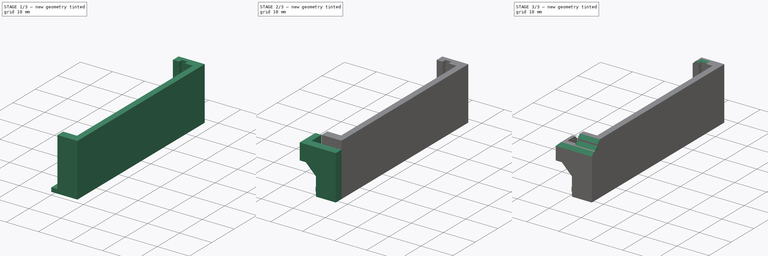
[diagram: build sequence overview — one tinted view per stage of 3, left to right]
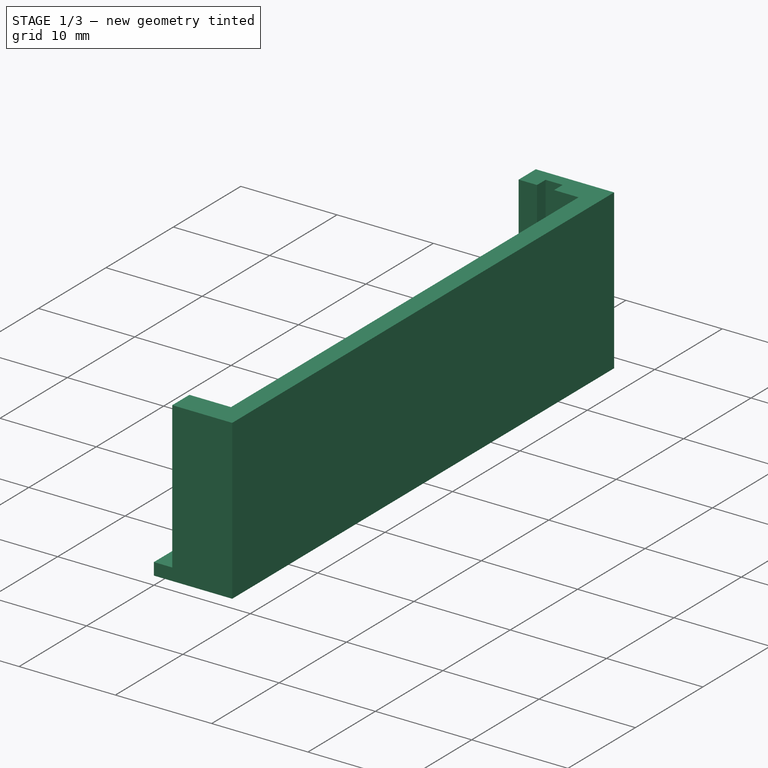
[diagram: stage 1 of 3 — iso view after this stage's code; geometry added in this stage tinted green]
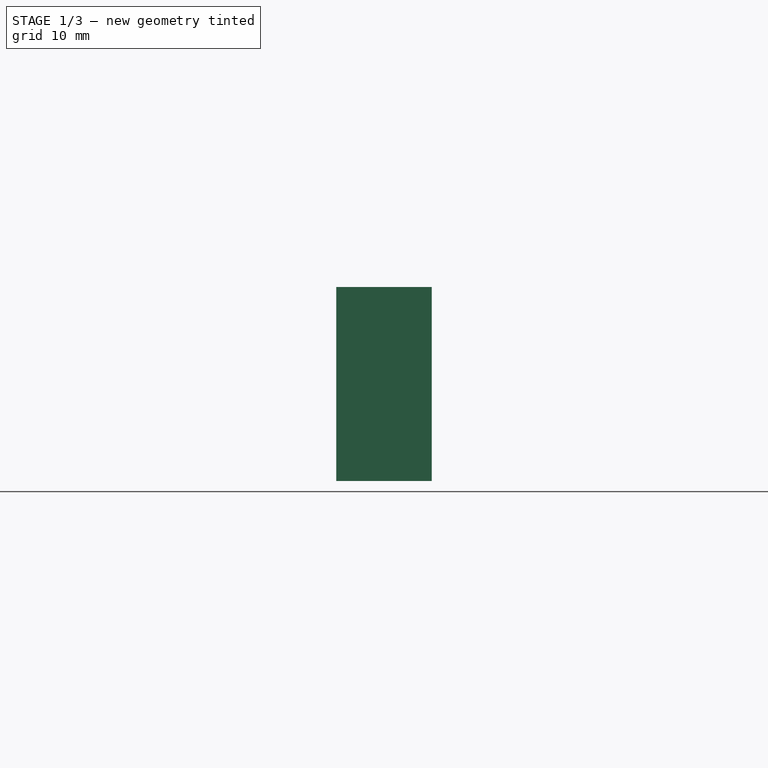
[diagram: stage 1 of 3 — front view after this stage's code; geometry added in this stage tinted green]
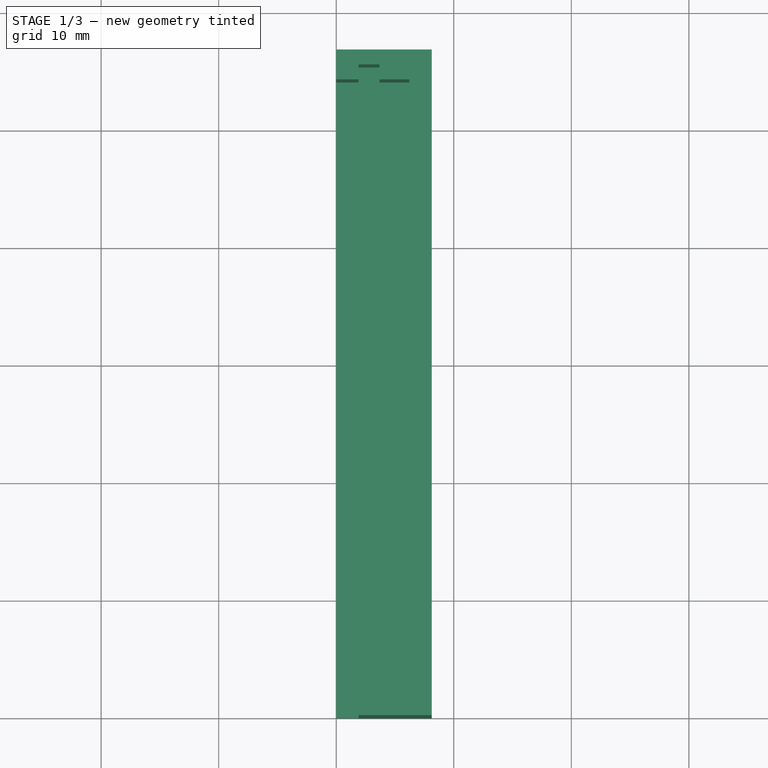
[diagram: stage 1 of 3 — top view after this stage's code; geometry added in this stage tinted green]
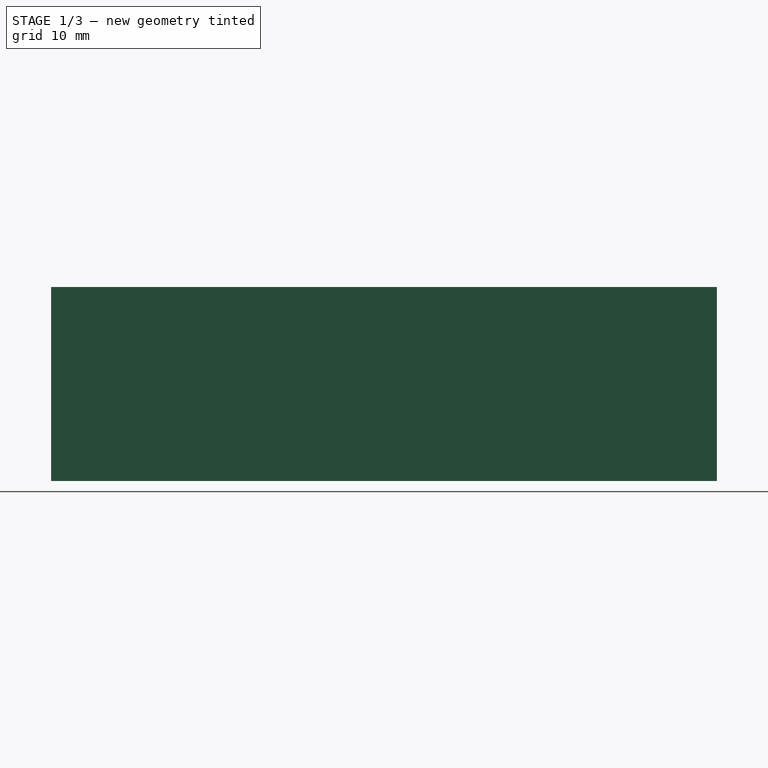
[diagram: stage 1 of 3 — right view after this stage's code; geometry added in this stage tinted green]
FCSTD DOCUMENT  (FreeCAD 0.22R36526 (Git))
Label: stm32 mount
License: All rights reserved
LicenseURL: http://en.wikipedia.org/wiki/All_rights_reserved
objects: Sketcher::SketchObject×4, PartDesign::Pad×4, PartDesign::Chamfer×2, PartDesign::Body×1
note: 17 computed .brp shape members not serialized (recipe doc carries the construction recipe); baked Part::Feature solids carry a one-line shape summary decoded from their .brp

FEATURE [Sketcher::SketchObject] Sketch
  AttachmentSupport = -> [XY_Plane]
  FullyConstrained = true
  MapMode = 5
  sketch-geometry (16):
    g0: LineSegment StartX=0 StartY=54.102 StartZ=0 EndX=0 EndY=56.642 EndZ=0
    g1: LineSegment StartX=0 StartY=56.642 StartZ=0 EndX=8.128 EndY=56.642 EndZ=0
    g2: LineSegment StartX=8.128 StartY=56.642 StartZ=0 EndX=8.128 EndY=0 EndZ=0
    g3: LineSegment StartX=1.905 StartY=2.54 StartZ=0 EndX=6.223 EndY=2.54 EndZ=0
    g4: LineSegment StartX=6.223 StartY=2.54 StartZ=0 EndX=6.223 EndY=54.102 EndZ=0
    g5: LineSegment StartX=6.223 StartY=54.102 StartZ=0 EndX=3.683 EndY=54.102 EndZ=0
    g6: LineSegment StartX=3.683 StartY=54.102 StartZ=0 EndX=3.683 EndY=55.372 EndZ=0
    g7: LineSegment StartX=3.683 StartY=55.372 StartZ=0 EndX=1.905 EndY=55.372 EndZ=0
    g8: LineSegment StartX=1.905 StartY=55.372 StartZ=0 EndX=1.905 EndY=54.102 EndZ=0
    g9: LineSegment StartX=1.905 StartY=54.102 StartZ=0 EndX=0 EndY=54.102 EndZ=0
    g10: LineSegment StartX=3.683 StartY=2.54 StartZ=0 EndX=3.683 EndY=55.372 EndZ=0
    g11: LineSegment StartX=3.683 StartY=55.372 StartZ=0 EndX=1.905 EndY=55.372 EndZ=0
    g12: LineSegment StartX=1.905 StartY=55.372 StartZ=0 EndX=1.905 EndY=2.54 EndZ=0
    g13: LineSegment StartX=1.905 StartY=2.54 StartZ=0 EndX=3.683 EndY=2.54 EndZ=0
    g14: LineSegment StartX=1.905 StartY=2.54 StartZ=0 EndX=1.905 EndY=0 EndZ=0
    g15: LineSegment StartX=8.128 StartY=0 StartZ=0 EndX=1.905 EndY=0 EndZ=0
  constraints (51):
    c: PointOnObject(g0,g-2)
    c: PointOnObject(g0,g-2)
    c: Coincident(g0,g1)
    c: Horizontal(g1)
    c: Coincident(g1,g2)
    c: PointOnObject(g2,g-1)
    c: Vertical(g2)
    c: Horizontal(g3)
    c: Coincident(g3,g4)
    c: Vertical(g4)
    c: Coincident(g4,g5)
    c: Horizontal(g5)
    c: Coincident(g5,g6)
    c: Coincident(g6,g7)
    c: Horizontal(g7)
    c: Coincident(g7,g8)
    c: Vertical(g8)
    c: Coincident(g8,g9)
    c: Coincident(g9,g0)
    c: Horizontal(g9)
    c: Vertical(g6)
    c: Coincident(g10,g11)
    c: Coincident(g11,g12)
    c: Coincident(g12,g13)
    c: Coincident(g13,g10)
    c: Vertical(g10)
    c: Vertical(g12)
    c: Horizontal(g13)
    c: Coincident(g11,g7)
    c: Coincident(g10,g6)
    c: Distance(g7,g7) = 1.778
    c: Distance(g3,g7) = 52.832
    c: Coincident(g12,g3)
    c: Coincident(g14,g3)
    c: PointOnObject(g14,g-1)
    c: Vertical(g14)
    c: Coincident(g15,g2)
    c: Coincident(g15,g14)
    c: DistanceY(g6,g6) = 1.27
    c: Equal(g6,g8)
    c: DistanceY(g14,g14) = 2.54
    c: DistanceY(g0,g0) = 2.54
    c: DistanceX(g9,g9) = 1.905
    c: DistanceX(g5,g5) = 2.54
    c: Distance(g4,g2) = 1.905
    c: Distance(g3,g-1) = 2.54  'mount_height_1'
    c: Distance(g0,g-1) = 54.102  'mount_height_2'
    c: Distance(g-2,g2) = 8.128  'mount_depth'
    c: Distance(g-2,g4) = 6.223  'mount_depth_2'
    c: Distance(g1,g-1) = 56.642  'mount_height_3'
    c: Distance(g-2,g14) = 1.905  'mount_depth_4'
FEATURE [PartDesign::Pad] Pad
  Direction = (0,0,1)
  Length = 15.24
  Length2 = 10
  Profile = -> Sketch
  ReferenceAxis = -> Sketch [N_Axis]
  Suppressed = false
  Type = 0
FEATURE [Sketcher::SketchObject] Sketch001
  AttachmentSupport = -> [XY_Plane]
  FullyConstrained = true
  MapMode = 5
  expr: Constraints[10] = Sketch.Constraints.mount_height_3
  expr: Constraints[9] = Sketch.Constraints.mount_depth
  sketch-geometry (4):
    g0: LineSegment StartX=0 StartY=0 StartZ=0 EndX=8.128 EndY=0 EndZ=0
    g1: LineSegment StartX=8.128 StartY=0 StartZ=0 EndX=8.128 EndY=56.642 EndZ=0
    g2: LineSegment StartX=8.128 StartY=56.642 StartZ=0 EndX=0 EndY=56.642 EndZ=0
    g3: LineSegment StartX=0 StartY=56.642 StartZ=0 EndX=0 EndY=0 EndZ=0
  constraints (11):
    c: Coincident(g0,g1)
    c: Coincident(g1,g2)
    c: Coincident(g2,g3)
    c: Coincident(g3,g0)
    c: Horizontal(g0)
    c: Horizontal(g2)
    c: Vertical(g1)
    c: Vertical(g3)
    c: Coincident(g0,g-1)
    c: DistanceX(g2,g2) = 8.128
    c: DistanceY(g1,g1) = 56.642
FEATURE [PartDesign::Pad] Pad001  label="BottomStopPad"
  BaseFeature = -> Pad
  Direction = (0,0,1)
  Length = 1.27
  Length2 = 10
  Profile = -> Sketch001
  ReferenceAxis = -> Sketch001 [N_Axis]
  Reversed = true
  Suppressed = false
  Type = 0
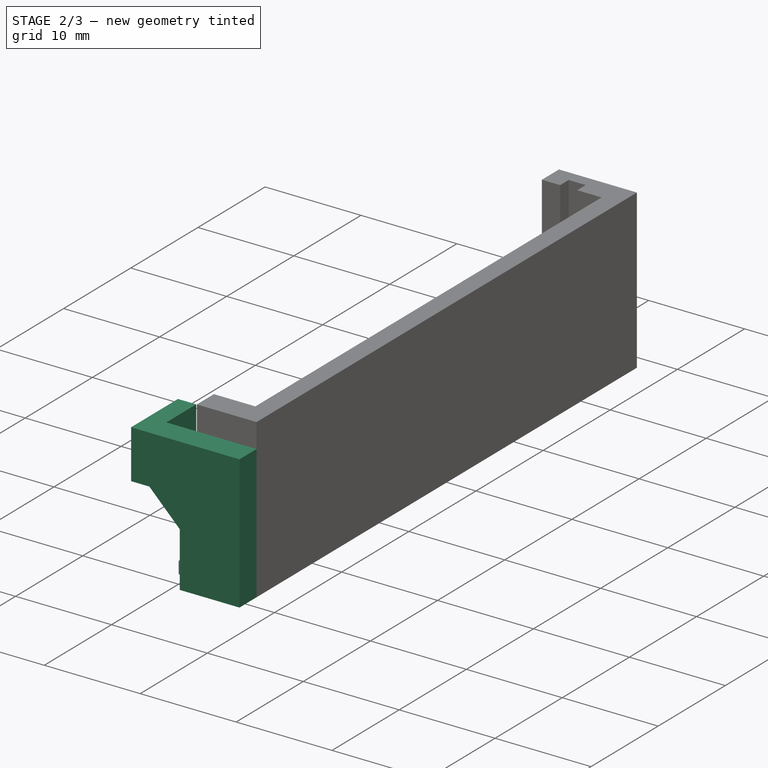
[diagram: stage 2 of 3 — iso view after this stage's code; geometry added in this stage tinted green]
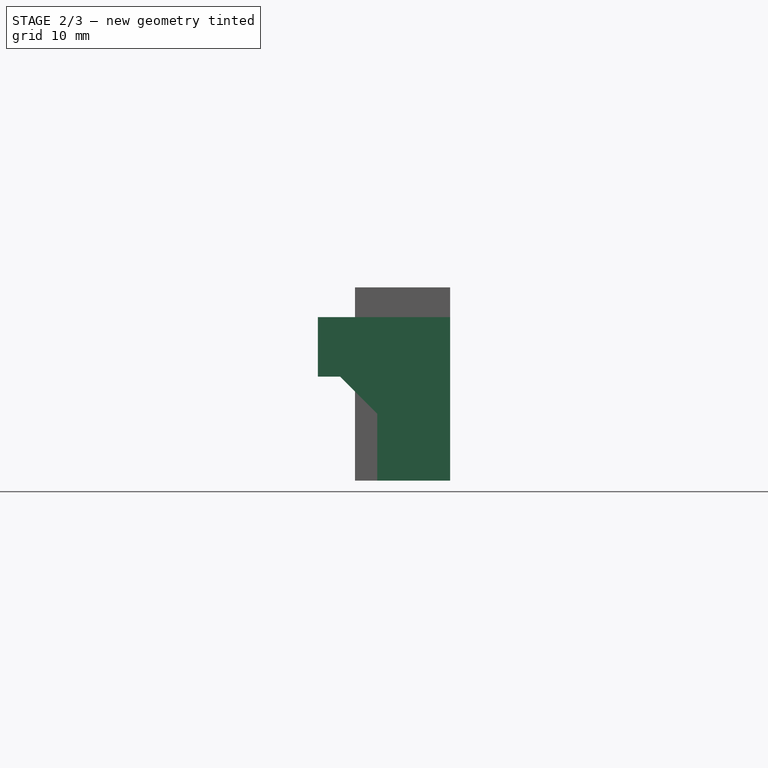
[diagram: stage 2 of 3 — front view after this stage's code; geometry added in this stage tinted green]
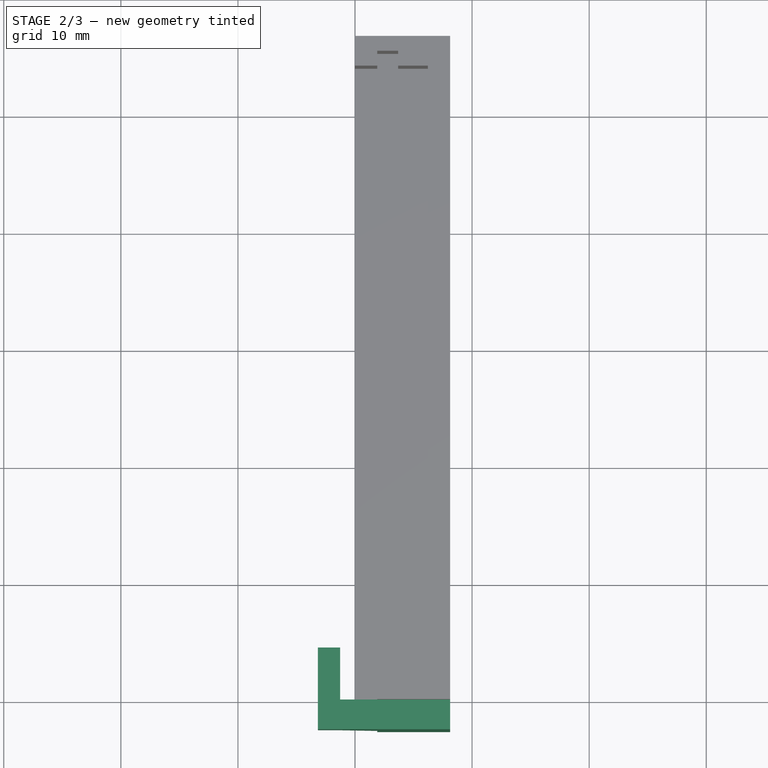
[diagram: stage 2 of 3 — top view after this stage's code; geometry added in this stage tinted green]
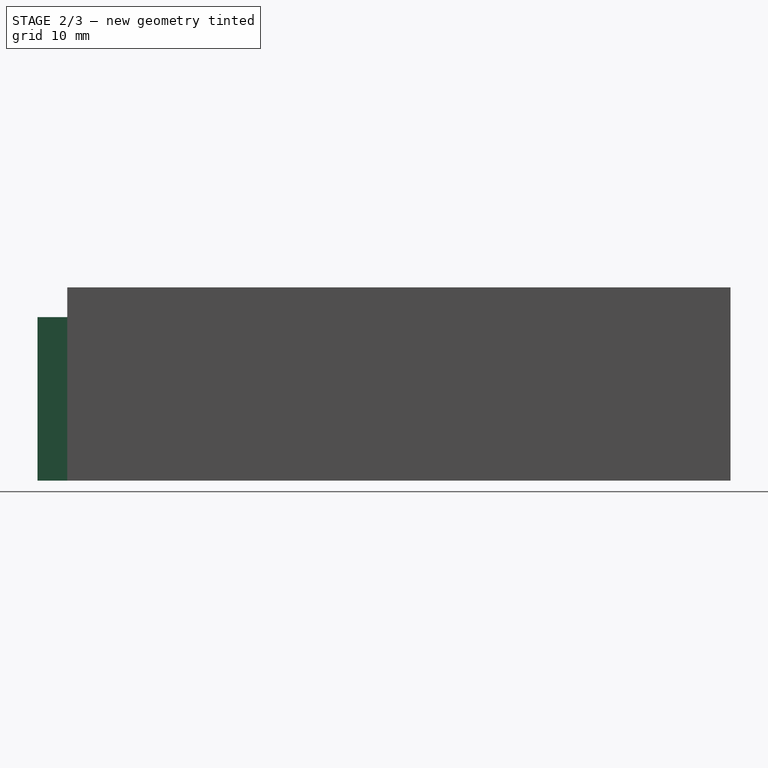
[diagram: stage 2 of 3 — right view after this stage's code; geometry added in this stage tinted green]
FEATURE [Sketcher::SketchObject] Sketch003
  AttachmentSupport = -> [XZ_Plane]
  FullyConstrained = true
  MapMode = 5
  Placement = pos=(0,0,0) rot=(1,0,0;1.5708rad)
  expr: Constraints[10] = <<BottomStopPad>>.Length
  expr: Constraints[13] = Sketch.Constraints.mount_depth_4
  expr: Constraints[16] = Sketch.Constraints.mount_depth
  sketch-geometry (6):
    g0: LineSegment StartX=-1.27 StartY=7.62 StartZ=0 EndX=-1.27 EndY=12.7 EndZ=0
    g1: LineSegment StartX=-1.27 StartY=12.7 StartZ=0 EndX=8.128 EndY=12.7 EndZ=0
    g2: LineSegment StartX=8.128 StartY=12.7 StartZ=0 EndX=8.128 EndY=-1.27 EndZ=0
    g3: LineSegment StartX=8.128 StartY=-1.27 StartZ=0 EndX=1.905 EndY=-1.27 EndZ=0
    g4: LineSegment StartX=1.905 StartY=-1.27 StartZ=0 EndX=1.905 EndY=4.445 EndZ=0
    g5: LineSegment StartX=1.905 StartY=4.445 StartZ=0 EndX=-1.27 EndY=7.62 EndZ=0
  constraints (19):
    c: Coincident(g0,g1)
    c: Horizontal(g1)
    c: Coincident(g1,g2)
    c: Vertical(g2)
    c: Coincident(g2,g3)
    c: Horizontal(g3)
    c: Coincident(g3,g4)
    c: Vertical(g4)
    c: Coincident(g4,g5)
    c: Coincident(g5,g0)
    c: Distance(g-1,g3) = 1.27
    c: Distance(g1,g-1) = 12.7
    c: DistanceY(g0,g0) = 5.08  'd'
    c: Distance(g3,g-2) = 1.905
    c: Distance(g0,g4) = 3.175
    c: Vertical(g0)
    c: Distance(g-2,g2) = 8.128
    c: Angle(g-2,g5) = 0.785398
    c: DistanceY(g-1,g0) = 7.62  'd2'
FEATURE [PartDesign::Pad] Pad002
  BaseFeature = -> Pad001
  Direction = (0,-1,2e-16)
  Length = 2.54
  Length2 = 10
  Profile = -> Sketch003
  ReferenceAxis = -> Sketch003 [N_Axis]
  Suppressed = false
  Type = 0
FEATURE [Sketcher::SketchObject] Sketch004
  AttachmentSupport = -> [Pad002]
  FullyConstrained = true
  MapMode = 5
  Placement = pos=(-1.27,0,0) rot=(0.57735,-0.57735,-0.57735;2.0944rad)
  expr: Constraints[10] = Pad002.Length
  expr: Constraints[11] = Sketch003.Constraints.d2
  expr: Constraints[9] = Sketch003.Constraints.d
  sketch-geometry (4):
    g0: LineSegment StartX=2.54 StartY=12.7 StartZ=0 EndX=-4.445 EndY=12.7 EndZ=0
    g1: LineSegment StartX=-4.445 StartY=12.7 StartZ=0 EndX=-4.445 EndY=7.62 EndZ=0
    g2: LineSegment StartX=-4.445 StartY=7.62 StartZ=0 EndX=2.54 EndY=7.62 EndZ=0
    g3: LineSegment StartX=2.54 StartY=7.62 StartZ=0 EndX=2.54 EndY=12.7 EndZ=0
  constraints (12):
    c: Coincident(g0,g1)
    c: Coincident(g1,g2)
    c: Coincident(g2,g3)
    c: Coincident(g3,g0)
    c: Horizontal(g0)
    c: Horizontal(g2)
    c: Vertical(g1)
    c: Vertical(g3)
    c: Distance(g1,g3) = 6.985
    c: Distance(g0,g2) = 5.08
    c: DistanceX(g-1,g2) = 2.54
    c: DistanceY(g-1,g2) = 7.62
FEATURE [PartDesign::Pad] Pad003
  BaseFeature = -> Pad002
  Direction = (-1,0,0)
  Length = 1.905
  Length2 = 10
  Profile = -> Sketch004
  ReferenceAxis = -> Sketch004 [N_Axis]
  Suppressed = false
  Type = 0
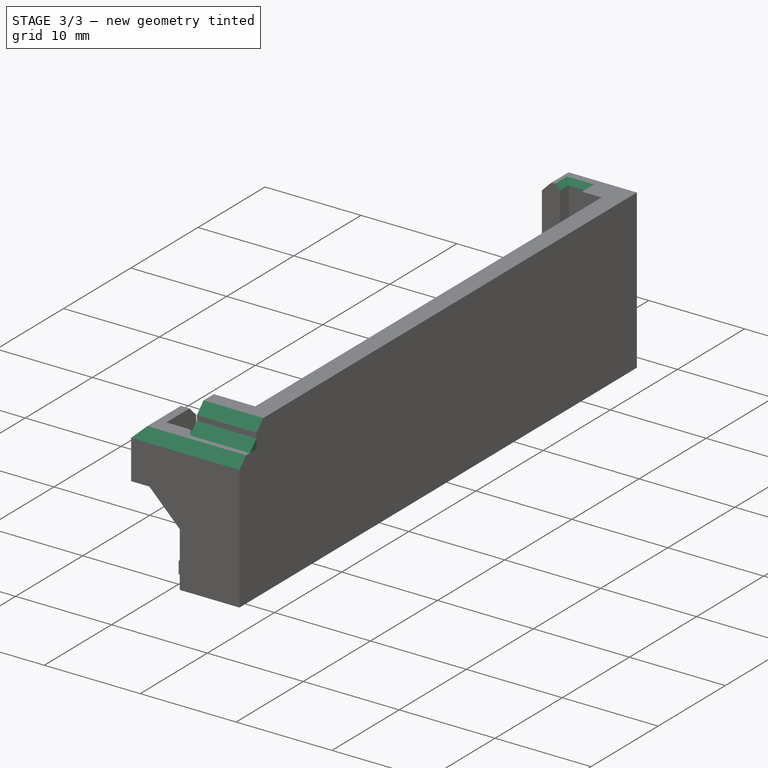
[diagram: stage 3 of 3 — iso view after this stage's code; geometry added in this stage tinted green]
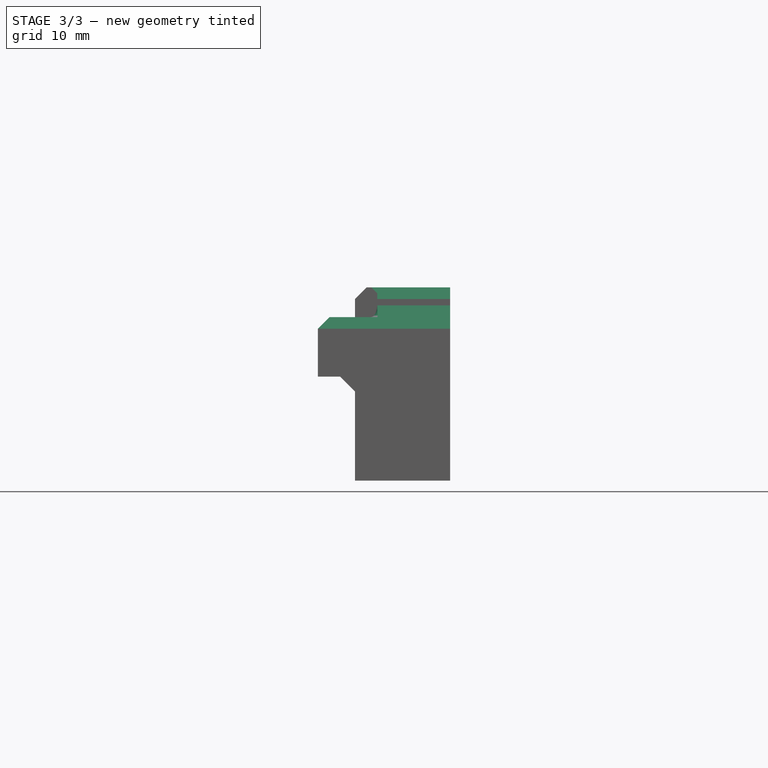
[diagram: stage 3 of 3 — front view after this stage's code; geometry added in this stage tinted green]
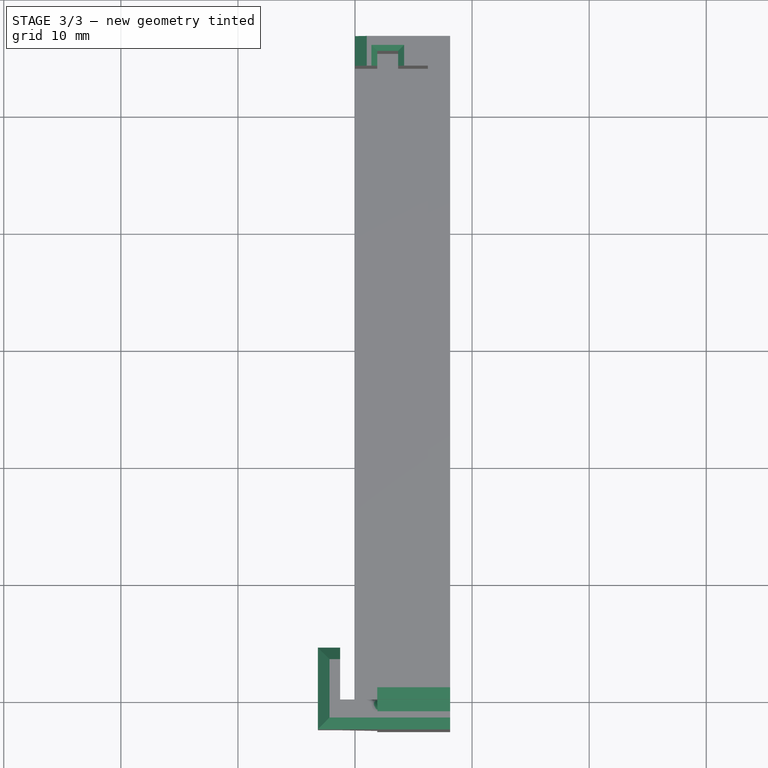
[diagram: stage 3 of 3 — top view after this stage's code; geometry added in this stage tinted green]
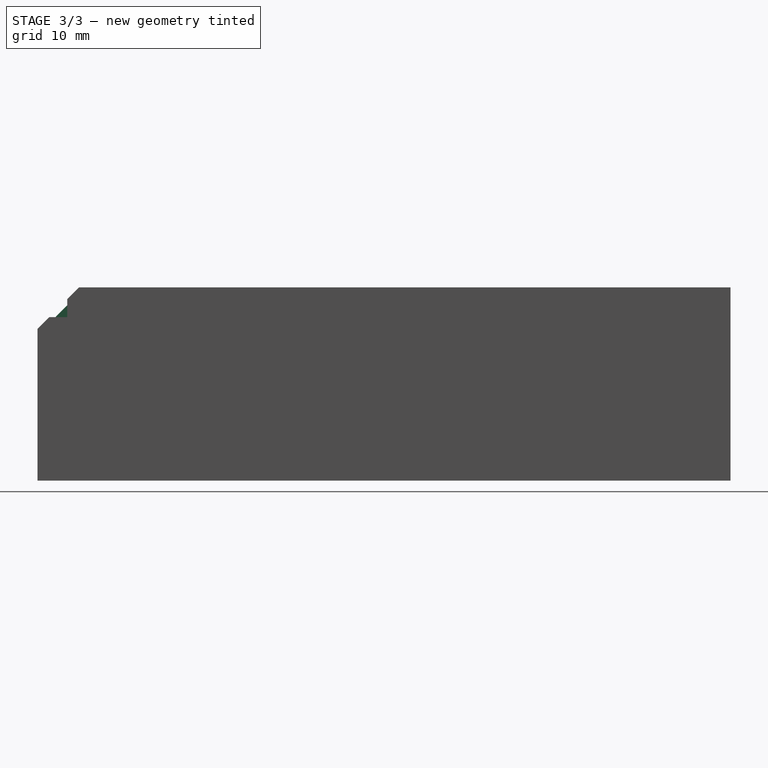
[diagram: stage 3 of 3 — right view after this stage's code; geometry added in this stage tinted green]
FEATURE [PartDesign::Chamfer] Chamfer
  Angle = 45
  Base = -> Pad003 [Edge21,Edge22,Edge23]
  BaseFeature = -> Pad003
  ChamferType = 0
  FlipDirection = false
  Size = 0.508
  Size2 = 1
  SupportTransform = false
  Suppressed = false
  UseAllEdges = false
FEATURE [PartDesign::Chamfer] Chamfer001
  Angle = 45
  Base = -> Chamfer [Edge10,Edge34,Edge9,Edge79,Edge77,Edge58,Edge78]
  BaseFeature = -> Chamfer
  ChamferType = 0
  FlipDirection = false
  Size = 1
  Size2 = 1
  SupportTransform = false
  Suppressed = false
  UseAllEdges = false
FEATURE [PartDesign::Body] Body
  Group = -> [Sketch,Pad,Sketch001,Pad001,Sketch003,Pad002,Sketch004,Pad003,Chamfer,Chamfer001]
  Origin = -> Origin
  Tip = -> Chamfer001
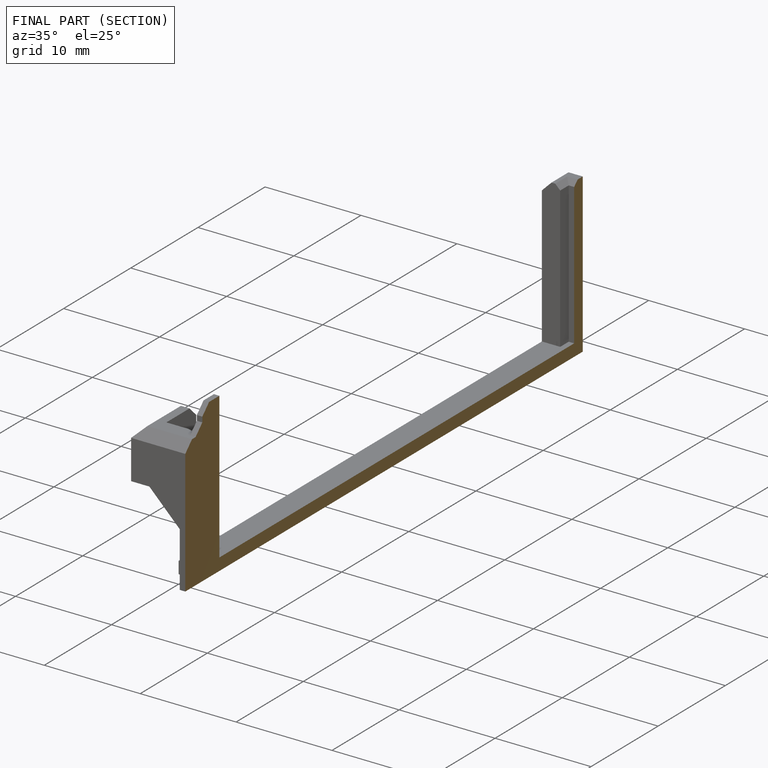
[diagram: finished part — half-section view (interior)]
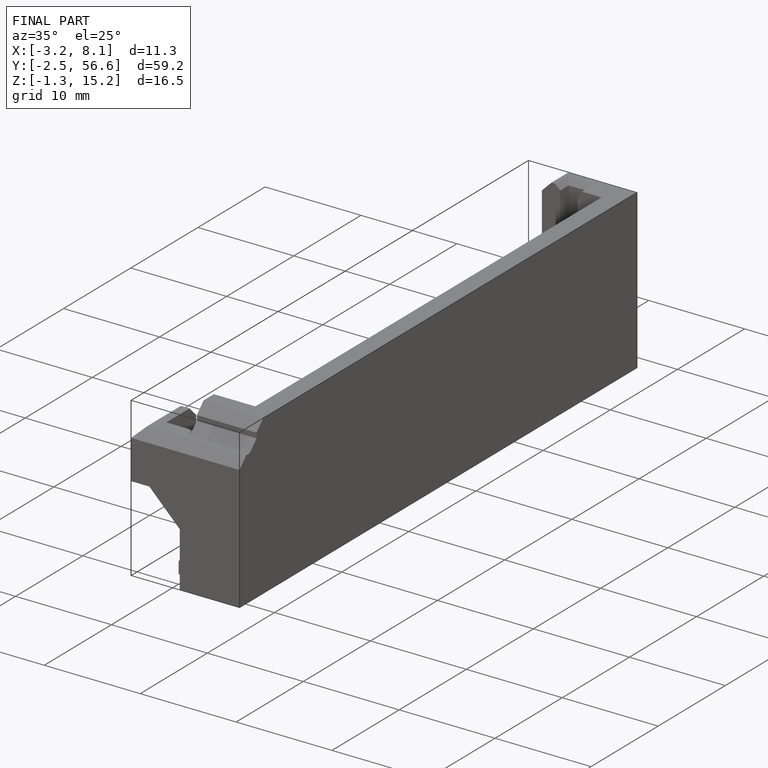
[diagram: finished part — iso view with bounding-box wireframe]
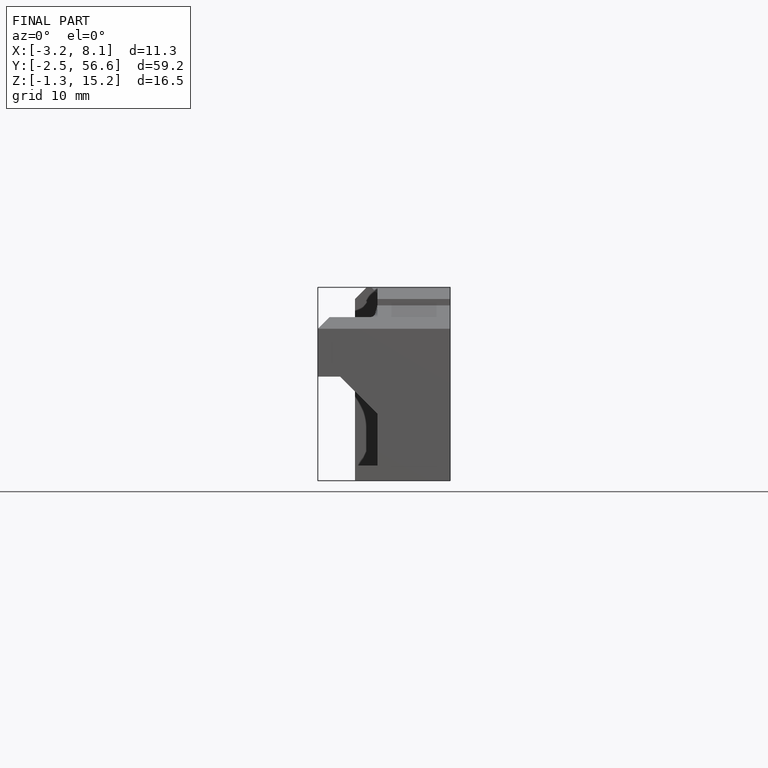
[diagram: finished part — front view with bounding-box wireframe]
